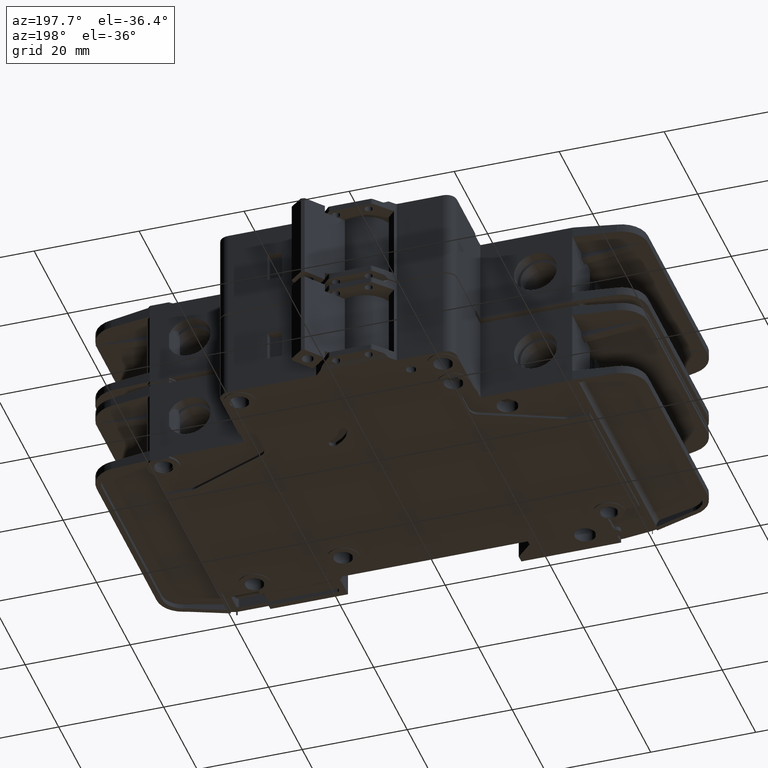
[diagram: clean part render]
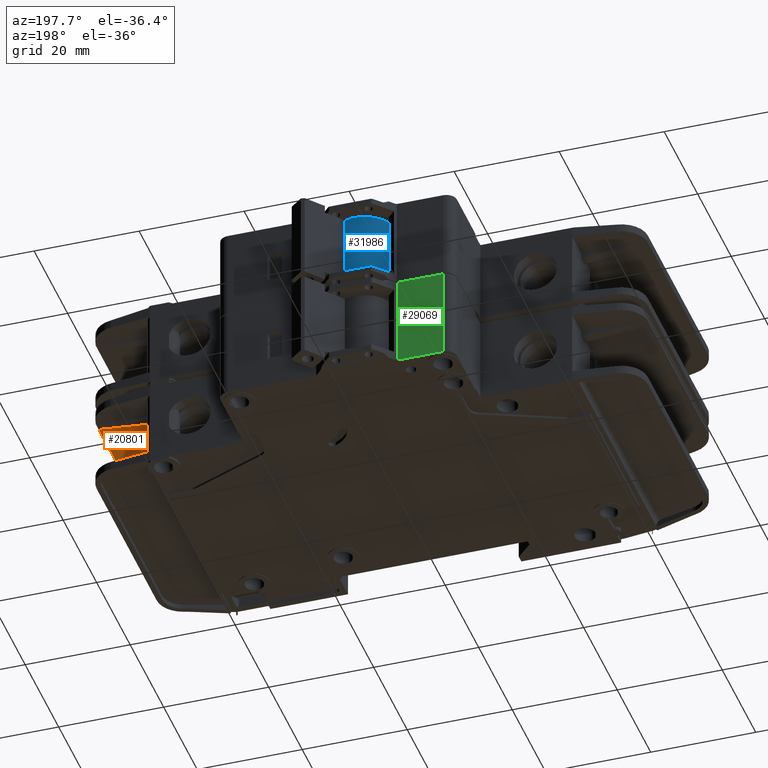
[diagram: same view with three faces highlighted in distinct colors, each labeled with its STEP entity id]
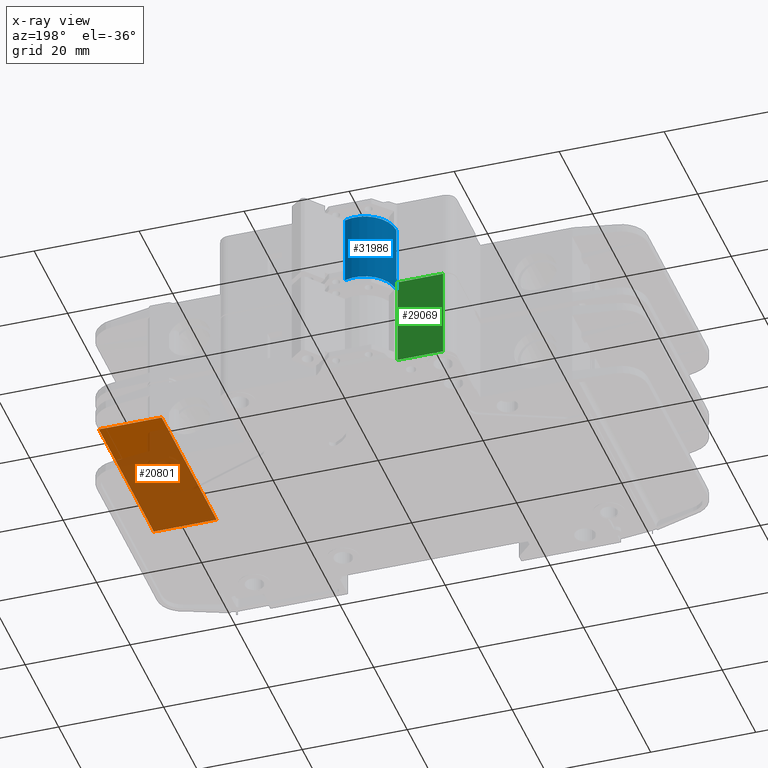
[diagram: x-ray of the same camera — body ghosted, the three highlighted faces saturated]
A machine part, auxiliary view with three faces highlighted in distinct colors.
The next image is the same camera in x-ray (body ghosted, the three faces saturated) — at least one of them is partly hidden behind the body in this view.
Their STEP definitions:

[orange] entity #20801 — the highlighted planar face has unit normal (-0, 0, -1).
#1034 = LINE ( 'NONE', #13061, #19912 ) ;
#1832 = ORIENTED_EDGE ( 'NONE', *, *, #30662, .T. ) ;
#6587 = ORIENTED_EDGE ( 'NONE', *, *, #18904, .F. ) ;
#6963 = VERTEX_POINT ( 'NONE', #15841 ) ;
#8317 = CARTESIAN_POINT ( 'NONE',  ( -1.322542160454188600E-015, -7.077671781985372900E-013, -11.40000000000000400 ) ) ;
#8866 = LINE ( 'NONE', #21380, #17696 ) ;
#11188 = DIRECTION ( 'NONE',  ( -0.0000000000000000000, 1.000000000000000000, -0.0000000000000000000 ) ) ;
#11583 = CARTESIAN_POINT ( 'NONE',  ( 80.50000000000001400, 42.29999999999999700, -11.40000000000000900 ) ) ;
#13061 = CARTESIAN_POINT ( 'NONE',  ( 92.50000000000000000, 9.500000000000000000, -11.39999999999491300 ) ) ;
#13350 = CARTESIAN_POINT ( 'NONE',  ( 92.46671467041520000, -7.077671781985372900E-013, -11.40000000000001100 ) ) ;
#15841 = CARTESIAN_POINT ( 'NONE',  ( 92.46671467041520000, 9.500000000000000000, -11.39999999999491300 ) ) ;
#16200 = VERTEX_POINT ( 'NONE', #22950 ) ;
#16843 = DIRECTION ( 'NONE',  ( -1.000000000000000000, -0.0000000000000000000, -0.0000000000000000000 ) ) ;
#17696 = VECTOR ( 'NONE', #36528, 1000.000000000000000 ) ;
#18183 = VERTEX_POINT ( 'NONE', #11583 ) ;
#18904 = EDGE_CURVE ( 'NONE', #6963, #30373, #47678, .T. ) ;
#19678 = PLANE ( 'NONE',  #46645 ) ;
#19912 = VECTOR ( 'NONE', #16843, 1000.000000000000000 ) ;
#20801 = ADVANCED_FACE ( 'NONE', ( #36002 ), #19678, .T. ) ;
#21380 = CARTESIAN_POINT ( 'NONE',  ( 92.50000000000000000, 42.29999999999999700, -11.39999999999490900 ) ) ;
#21416 = EDGE_CURVE ( 'NONE', #16200, #18183, #31789, .T. ) ;
#21641 = VECTOR ( 'NONE', #11188, 1000.000000000000000 ) ;
#22950 = CARTESIAN_POINT ( 'NONE',  ( 80.50000000000001400, 9.500000000000000000, -11.39999999999491300 ) ) ;
#23527 = DIRECTION ( 'NONE',  ( -1.000000000000000000, 0.0000000000000000000, 7.228014483236698300E-017 ) ) ;
#28385 = EDGE_CURVE ( 'NONE', #30373, #18183, #8866, .T. ) ;
#29600 = EDGE_LOOP ( 'NONE', ( #33937, #35846, #6587, #1832 ) ) ;
#30048 = CARTESIAN_POINT ( 'NONE',  ( 92.46671467041520000, 42.29999999999999700, -11.40000000000001100 ) ) ;
#30373 = VERTEX_POINT ( 'NONE', #30048 ) ;
#30662 = EDGE_CURVE ( 'NONE', #6963, #16200, #1034, .T. ) ;
#31789 = LINE ( 'NONE', #45225, #21641 ) ;
#33937 = ORIENTED_EDGE ( 'NONE', *, *, #21416, .T. ) ;
#35846 = ORIENTED_EDGE ( 'NONE', *, *, #28385, .F. ) ;
#36002 = FACE_OUTER_BOUND ( 'NONE', #29600, .T. ) ;
#36076 = DIRECTION ( 'NONE',  ( -0.0000000000000000000, 1.000000000000000000, -0.0000000000000000000 ) ) ;
#36528 = DIRECTION ( 'NONE',  ( -1.000000000000000000, -0.0000000000000000000, -0.0000000000000000000 ) ) ;
#37557 = VECTOR ( 'NONE', #36076, 1000.000000000000000 ) ;
#45225 = CARTESIAN_POINT ( 'NONE',  ( 80.50000000000001400, -7.077671781985372900E-013, -11.40000000000000900 ) ) ;
#46298 = DIRECTION ( 'NONE',  ( -7.228014483236698300E-017, 0.0000000000000000000, -1.000000000000000000 ) ) ;
#46645 = AXIS2_PLACEMENT_3D ( 'NONE', #8317, #46298, #23527 ) ;
#47678 = LINE ( 'NONE', #13350, #37557 ) ;

[blue] entity #31986 — the highlighted cylindrical surface (edge-blend (fillet) strip) has radius 6 mm, axis along (-0, -0, -1).
#4775 = CARTESIAN_POINT ( 'NONE',  ( 30.00000000000011700, 60.50000000000000000, -6.750000000000000000 ) ) ;
#5176 = DIRECTION ( 'NONE',  ( -0.0000000000000000000, 0.0000000000000000000, 1.000000000000000000 ) ) ;
#6161 = LINE ( 'NONE', #20468, #16163 ) ;
#9743 = CYLINDRICAL_SURFACE ( 'NONE', #38330, 5.999999999999887200 ) ;
#10896 = VERTEX_POINT ( 'NONE', #27608 ) ;
#11754 = CIRCLE ( 'NONE', #44568, 5.999999999999887200 ) ;
#14262 = CARTESIAN_POINT ( 'NONE',  ( 36.00000000000000700, 60.50000000000000000, 6.750000000000000000 ) ) ;
#16163 = VECTOR ( 'NONE', #24299, 1000.000000000000000 ) ;
#16288 = VERTEX_POINT ( 'NONE', #4775 ) ;
#16540 = ORIENTED_EDGE ( 'NONE', *, *, #29656, .T. ) ;
#16858 = CARTESIAN_POINT ( 'NONE',  ( 30.00000000000011700, 60.50000000000000000, 6.750000000000000000 ) ) ;
#17100 = CARTESIAN_POINT ( 'NONE',  ( 36.00000000000000700, 60.50000000000000000, -6.750000000000000000 ) ) ;
#18019 = DIRECTION ( 'NONE',  ( -0.0000000000000000000, -0.0000000000000000000, -1.000000000000000000 ) ) ;
#20423 = AXIS2_PLACEMENT_3D ( 'NONE', #27866, #5176, #31681 ) ;
#20468 = CARTESIAN_POINT ( 'NONE',  ( 37.99362241761382800, 66.15910502252675900, 6.750000000000000000 ) ) ;
#20933 = DIRECTION ( 'NONE',  ( 1.000000000000000000, 0.0000000000000000000, 0.0000000000000000000 ) ) ;
#21428 = VERTEX_POINT ( 'NONE', #45399 ) ;
#21561 = CARTESIAN_POINT ( 'NONE',  ( 37.99362241761382800, 66.15910502252675900, 6.750000000000000000 ) ) ;
#24299 = DIRECTION ( 'NONE',  ( -0.0000000000000000000, -0.0000000000000000000, -1.000000000000000000 ) ) ;
#24429 = ORIENTED_EDGE ( 'NONE', *, *, #40079, .F. ) ;
#27318 = ORIENTED_EDGE ( 'NONE', *, *, #48286, .T. ) ;
#27608 = CARTESIAN_POINT ( 'NONE',  ( 30.00000000000011700, 60.50000000000000000, 6.750000000000000000 ) ) ;
#27866 = CARTESIAN_POINT ( 'NONE',  ( 36.00000000000000700, 60.50000000000000000, 6.750000000000000000 ) ) ;
#29406 = DIRECTION ( 'NONE',  ( -1.000000000000000000, 0.0000000000000000000, 0.0000000000000000000 ) ) ;
#29656 = EDGE_CURVE ( 'NONE', #21428, #16288, #11754, .T. ) ;
#31681 = DIRECTION ( 'NONE',  ( 1.000000000000000000, 0.0000000000000000000, 0.0000000000000000000 ) ) ;
#31986 = ADVANCED_FACE ( 'NONE', ( #41212 ), #9743, .T. ) ;
#34373 = LINE ( 'NONE', #16858, #43276 ) ;
#38330 = AXIS2_PLACEMENT_3D ( 'NONE', #14262, #18019, #29406 ) ;
#39660 = DIRECTION ( 'NONE',  ( -0.0000000000000000000, -0.0000000000000000000, -1.000000000000000000 ) ) ;
#39744 = VERTEX_POINT ( 'NONE', #21561 ) ;
#40079 = EDGE_CURVE ( 'NONE', #39744, #10896, #48805, .T. ) ;
#41212 = FACE_OUTER_BOUND ( 'NONE', #43141, .T. ) ;
#41735 = EDGE_CURVE ( 'NONE', #10896, #16288, #34373, .T. ) ;
#43141 = EDGE_LOOP ( 'NONE', ( #46930, #24429, #27318, #16540 ) ) ;
#43276 = VECTOR ( 'NONE', #39660, 1000.000000000000000 ) ;
#43724 = DIRECTION ( 'NONE',  ( -0.0000000000000000000, 0.0000000000000000000, 1.000000000000000000 ) ) ;
#44568 = AXIS2_PLACEMENT_3D ( 'NONE', #17100, #43724, #20933 ) ;
#45399 = CARTESIAN_POINT ( 'NONE',  ( 37.99362241761382800, 66.15910502252675900, -6.750000000000000000 ) ) ;
#46930 = ORIENTED_EDGE ( 'NONE', *, *, #41735, .F. ) ;
#48286 = EDGE_CURVE ( 'NONE', #39744, #21428, #6161, .T. ) ;
#48805 = CIRCLE ( 'NONE', #20423, 5.999999999999887200 ) ;

[green] entity #29069 — the highlighted planar face has unit normal (-0, -1, 0).
#1840 = DIRECTION ( 'NONE',  ( 1.000000000000000000, -1.604368532695653400E-015, 0.0000000000000000000 ) ) ;
#2706 = LINE ( 'NONE', #11926, #10335 ) ;
#3951 = VERTEX_POINT ( 'NONE', #5902 ) ;
#5481 = VERTEX_POINT ( 'NONE', #45303 ) ;
#5902 = CARTESIAN_POINT ( 'NONE',  ( 19.49999999999999600, 65.50000000000331100, -26.45000000000000300 ) ) ;
#9377 = EDGE_CURVE ( 'NONE', #5481, #3951, #2706, .T. ) ;
#10335 = VECTOR ( 'NONE', #15735, 1000.000000000000000 ) ;
#10550 = VECTOR ( 'NONE', #21801, 1000.000000000000000 ) ;
#11926 = CARTESIAN_POINT ( 'NONE',  ( 1.033082318186725500E-013, 65.50000000000334000, -26.45000000000000300 ) ) ;
#13049 = CARTESIAN_POINT ( 'NONE',  ( 1.033082318186725500E-013, 65.50000000000334000, -8.949999999999999300 ) ) ;
#13655 = VECTOR ( 'NONE', #40205, 1000.000000000000000 ) ;
#14587 = ORIENTED_EDGE ( 'NONE', *, *, #33502, .F. ) ;
#14820 = CARTESIAN_POINT ( 'NONE',  ( 28.14999999999816200, 65.50000000000329700, -8.949999999999999300 ) ) ;
#14852 = LINE ( 'NONE', #36377, #13655 ) ;
#15735 = DIRECTION ( 'NONE',  ( -1.000000000000000000, 1.604368532695653600E-015, 0.0000000000000000000 ) ) ;
#20920 = VECTOR ( 'NONE', #48088, 1000.000000000000000 ) ;
#21317 = CARTESIAN_POINT ( 'NONE',  ( 19.49999999999999600, 65.50000000000331100, -8.949999999999999300 ) ) ;
#21801 = DIRECTION ( 'NONE',  ( -0.0000000000000000000, -0.0000000000000000000, -1.000000000000000000 ) ) ;
#21809 = LINE ( 'NONE', #44433, #10550 ) ;
#24500 = DIRECTION ( 'NONE',  ( -1.604368532695653400E-015, -1.000000000000000000, 0.0000000000000000000 ) ) ;
#26195 = EDGE_CURVE ( 'NONE', #47411, #3951, #31059, .T. ) ;
#28180 = ORIENTED_EDGE ( 'NONE', *, *, #9377, .T. ) ;
#28995 = EDGE_CURVE ( 'NONE', #40902, #5481, #21809, .T. ) ;
#29069 = ADVANCED_FACE ( 'NONE', ( #47413 ), #35790, .F. ) ;
#29256 = ORIENTED_EDGE ( 'NONE', *, *, #26195, .F. ) ;
#31059 = LINE ( 'NONE', #21317, #20920 ) ;
#33502 = EDGE_CURVE ( 'NONE', #40902, #47411, #14852, .T. ) ;
#35790 = PLANE ( 'NONE',  #36267 ) ;
#36267 = AXIS2_PLACEMENT_3D ( 'NONE', #13049, #24500, #1840 ) ;
#36377 = CARTESIAN_POINT ( 'NONE',  ( 1.033082318186725500E-013, 65.50000000000334000, -8.949999999999999300 ) ) ;
#40205 = DIRECTION ( 'NONE',  ( -1.000000000000000000, 1.604368532695653600E-015, 0.0000000000000000000 ) ) ;
#40902 = VERTEX_POINT ( 'NONE', #14820 ) ;
#41187 = CARTESIAN_POINT ( 'NONE',  ( 19.49999999999999600, 65.50000000000331100, -8.949999999999999300 ) ) ;
#42797 = EDGE_LOOP ( 'NONE', ( #28180, #29256, #14587, #48645 ) ) ;
#44433 = CARTESIAN_POINT ( 'NONE',  ( 28.14999999999816200, 65.50000000000329700, -8.949999999999999300 ) ) ;
#45303 = CARTESIAN_POINT ( 'NONE',  ( 28.14999999999816200, 65.50000000000329700, -26.45000000000000300 ) ) ;
#47411 = VERTEX_POINT ( 'NONE', #41187 ) ;
#47413 = FACE_OUTER_BOUND ( 'NONE', #42797, .T. ) ;
#48088 = DIRECTION ( 'NONE',  ( -0.0000000000000000000, -0.0000000000000000000, -1.000000000000000000 ) ) ;
#48645 = ORIENTED_EDGE ( 'NONE', *, *, #28995, .T. ) ;